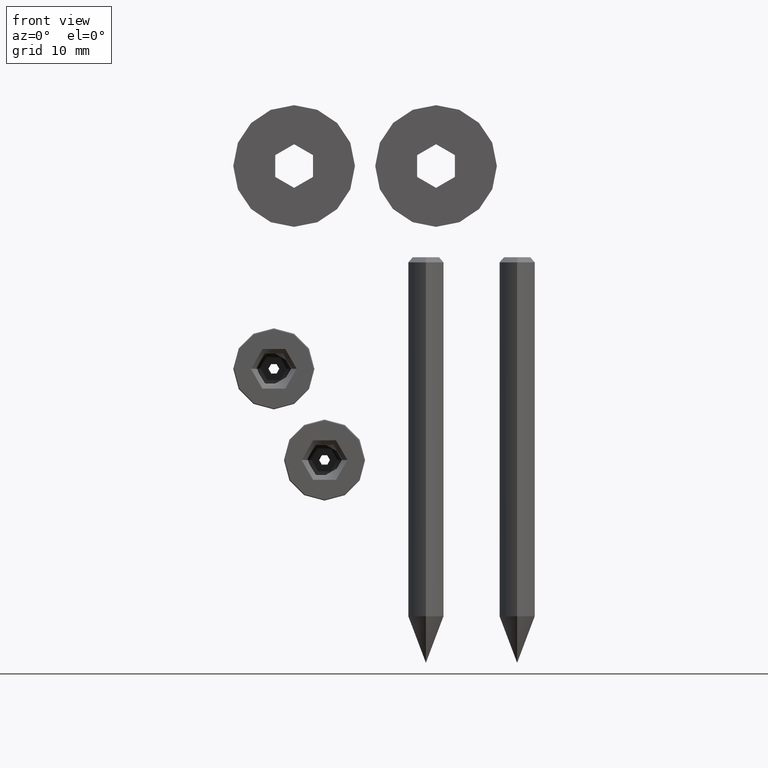
[diagram: clean part render]
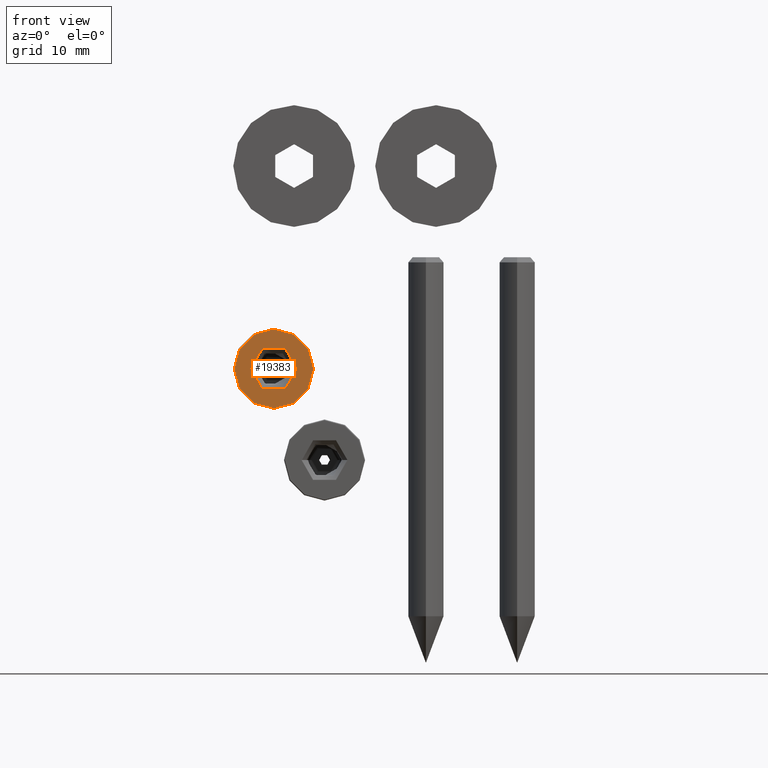
[diagram: same view with one face highlighted and labeled with its STEP entity id]
A machine part, front view. The second image highlights one B-rep face of the part: STEP entity #19383.
In plain terms, the highlighted planar face has unit normal (-0, -1, -0).
Its self-contained STEP definition (entity closure, byte-faithful):
#26 = AXIS2_PLACEMENT_3D ( 'NONE', #13471, #21861, #5083 ) ;
#1197 = ORIENTED_EDGE ( 'NONE', *, *, #26857, .T. ) ;
#3220 = EDGE_LOOP ( 'NONE', ( #9122, #27233 ) ) ;
#5083 = DIRECTION ( 'NONE',  ( 0.000000000000000000, -1.000000000000000000, 6.803593328596415609E-18 ) ) ;
#5499 = CARTESIAN_POINT ( 'NONE',  ( 0.000000000000000000, -1.484692195150863001E-17, 1.355252715606880543E-17 ) ) ;
#6619 = AXIS2_PLACEMENT_3D ( 'NONE', #11959, #14058, #20416 ) ;
#7226 = CARTESIAN_POINT ( 'NONE',  ( 2.805931182062886852E-16, 2.291216687143170727, -1.017989705473623939E-18 ) ) ;
#7769 = EDGE_CURVE ( 'NONE', #20150, #22355, #23352, .T. ) ;
#8584 = DIRECTION ( 'NONE',  ( 0.000000000000000000, -1.000000000000000000, 6.803593328596414068E-18 ) ) ;
#9063 = AXIS2_PLACEMENT_3D ( 'NONE', #12358, #14750, #8584 ) ;
#9122 = ORIENTED_EDGE ( 'NONE', *, *, #10196, .T. ) ;
#10196 = EDGE_CURVE ( 'NONE', #22355, #20150, #13464, .T. ) ;
#10215 = EDGE_CURVE ( 'NONE', #12482, #15774, #16773, .T. ) ;
#10257 = FACE_BOUND ( 'NONE', #3220, .T. ) ;
#11170 = CARTESIAN_POINT ( 'NONE',  ( 0.000000000000000000, -3.900000000000000355, 4.008654113759481705E-17 ) ) ;
#11868 = DIRECTION ( 'NONE',  ( -0.000000000000000000, -6.803593328596413297E-18, -1.000000000000000000 ) ) ;
#11939 = CARTESIAN_POINT ( 'NONE',  ( 0.000000000000000000, 6.803593328596413683E-19, 1.355252715606880543E-17 ) ) ;
#11959 = CARTESIAN_POINT ( 'NONE',  ( 0.000000000000000000, 6.803593328596413683E-19, 1.355252715606880543E-17 ) ) ;
#12295 = CIRCLE ( 'NONE', #27352, 3.900000000000000355 ) ;
#12358 = CARTESIAN_POINT ( 'NONE',  ( 0.000000000000000000, 6.943332327138243445E-35, 1.020538999289462033E-17 ) ) ;
#12384 = CARTESIAN_POINT ( 'NONE',  ( 0.000000000000000000, -2.291216687143170727, 2.812304401761123402E-17 ) ) ;
#12482 = VERTEX_POINT ( 'NONE', #11170 ) ;
#13120 = ORIENTED_EDGE ( 'NONE', *, *, #10215, .T. ) ;
#13464 = CIRCLE ( 'NONE', #19288, 2.291216687143170727 ) ;
#13471 = CARTESIAN_POINT ( 'NONE',  ( 0.000000000000000000, -1.484692195150863001E-17, 1.355252715606880543E-17 ) ) ;
#14058 = DIRECTION ( 'NONE',  ( 0.000000000000000000, 6.803593328596413297E-18, 1.000000000000000000 ) ) ;
#14506 = FACE_OUTER_BOUND ( 'NONE', #19998, .T. ) ;
#14750 = DIRECTION ( 'NONE',  ( 0.000000000000000000, 6.803593328596414068E-18, 1.000000000000000000 ) ) ;
#15774 = VERTEX_POINT ( 'NONE', #19293 ) ;
#16773 = CIRCLE ( 'NONE', #6619, 3.900000000000000355 ) ;
#17916 = DIRECTION ( 'NONE',  ( 0.000000000000000000, 6.803593328596413297E-18, 1.000000000000000000 ) ) ;
#19288 = AXIS2_PLACEMENT_3D ( 'NONE', #5499, #11868, #22524 ) ;
#19293 = CARTESIAN_POINT ( 'NONE',  ( 4.837354856632045057E-16, 3.900000000000000355, -1.298148682545720929E-17 ) ) ;
#19383 = ADVANCED_FACE ( 'NONE', ( #14506, #10257 ), #27351, .T. ) ;
#19998 = EDGE_LOOP ( 'NONE', ( #13120, #1197 ) ) ;
#20150 = VERTEX_POINT ( 'NONE', #7226 ) ;
#20416 = DIRECTION ( 'NONE',  ( 0.000000000000000000, -1.000000000000000000, 6.803593328596413297E-18 ) ) ;
#21861 = DIRECTION ( 'NONE',  ( -0.000000000000000000, -6.803593328596413297E-18, -1.000000000000000000 ) ) ;
#22355 = VERTEX_POINT ( 'NONE', #12384 ) ;
#22524 = DIRECTION ( 'NONE',  ( 0.000000000000000000, -1.000000000000000000, 6.803593328596415609E-18 ) ) ;
#23352 = CIRCLE ( 'NONE', #26, 2.291216687143170727 ) ;
#24344 = DIRECTION ( 'NONE',  ( 0.000000000000000000, -1.000000000000000000, 6.803593328596413297E-18 ) ) ;
#26857 = EDGE_CURVE ( 'NONE', #15774, #12482, #12295, .T. ) ;
#27233 = ORIENTED_EDGE ( 'NONE', *, *, #7769, .T. ) ;
#27351 = PLANE ( 'NONE',  #9063 ) ;
#27352 = AXIS2_PLACEMENT_3D ( 'NONE', #11939, #17916, #24344 ) ;